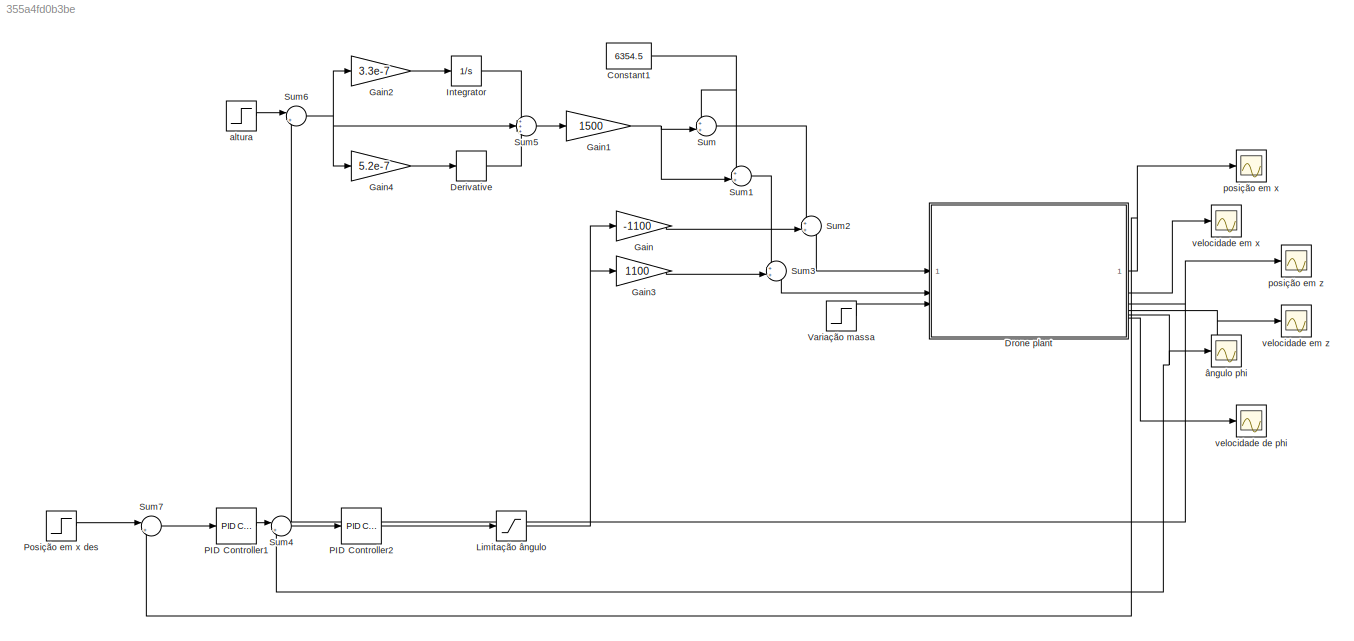
MODEL slx_355a4fd0b3be
KIND model
CONFIG AbsTol = auto
CONFIG EnableMultiTasking = off
CONFIG FixedStep = auto
CONFIG MaxStep = auto
CONFIG MinStep = auto
CONFIG RelTol = 1e-3
CONFIG SampleTimeConstraint = Unconstrained
CONFIG SolverName = VariableStepAuto
CONFIG StartTime = 0.0
CONFIG StopTime = 100
BLOCK [Scope]  ângulo phi
  Floating = off
  NumInputPorts = 1
  ScopeSpecificationString = Simulink.scopes.TimeScopeBlockCfg('CurrentConfiguration', extmgr.ConfigurationSet(extmgr.Configuration('Core','General UI',true),extmgr.Configuration('Core','Source UI',true),extmgr.Configuration('Sources','WiredSimulink',true,'DataLoggingVariableName','ScopeData2'),extmgr.Configuration('Visuals','Time Domain',true,'SerializedDisplays',{struct('MinYLimReal','-0.96448','MaxYLimReal','0.59619','YLab...<+1374ch>
BLOCK [Constant] Constant1
  Value = 6354.5
BLOCK [Derivative] Derivative
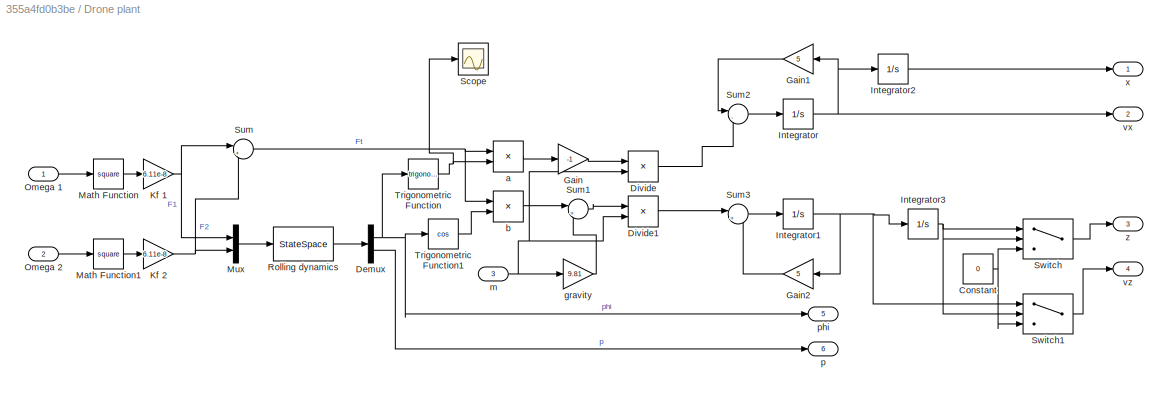
BLOCK [SubSystem] Drone plant
BLOCK [Constant] Drone plant/Constant
  Value = 0
BLOCK [Demux] Drone plant/Demux
  Outputs = 2
BLOCK [Product] Drone plant/Divide
  Inputs = */
BLOCK [Product] Drone plant/Divide1
  Inputs = */
BLOCK [Gain] Drone plant/Gain
  Gain = -1
BLOCK [Gain] Drone plant/Gain1
  Gain = 5
BLOCK [Gain] Drone plant/Gain2
  Gain = 5
BLOCK [Integrator] Drone plant/Integrator
BLOCK [Integrator] Drone plant/Integrator1
BLOCK [Integrator] Drone plant/Integrator2
BLOCK [Integrator] Drone plant/Integrator3
BLOCK [Gain] Drone plant/Kf 1
  Gain = 6.11e-8
BLOCK [Gain] Drone plant/Kf 2
  Gain = 6.11e-8
BLOCK [Math] Drone plant/Math Function
  Operator = square
BLOCK [Math] Drone plant/Math Function1
  Operator = square
BLOCK [Mux] Drone plant/Mux
  DisplayOption = bar
  Inputs = 2
BLOCK [Inport] Drone plant/Omega 1
BLOCK [Inport] Drone plant/Omega 2
  Port = 2
BLOCK [StateSpace] Drone plant/Rolling dynamics
  A = [0 1; 0 -1800]
  B = [0 0; 110.8 -110.8]
  C = [1 0; 0 1]
  D = [0 0; 0 0]
  InitialCondition = 0
BLOCK [Scope] Drone plant/Scope
  Floating = off
  NumInputPorts = 1
  ScopeSpecificationString = Simulink.scopes.TimeScopeBlockCfg('CurrentConfiguration', extmgr.ConfigurationSet(extmgr.Configuration('Core','General UI',true),extmgr.Configuration('Core','Source UI',true),extmgr.Configuration('Sources','WiredSimulink',true,'DataLoggingVariableName','ScopeData1'),extmgr.Configuration('Visuals','Time Domain',true,'SerializedDisplays',{struct('MinYLimReal','-0.12237','MaxYLimReal','0.0136','YLabe...<+1407ch>
BLOCK [Sum] Drone plant/Sum
  Inputs = |++
BLOCK [Sum] Drone plant/Sum1
  Inputs = |+-
BLOCK [Sum] Drone plant/Sum2
  Inputs = |-+
  NameLocation = top
BLOCK [Sum] Drone plant/Sum3
  Inputs = |+-
  NameLocation = top
BLOCK [Switch] Drone plant/Switch
  Criteria = u2 > Threshold
  InputSameDT = off
  SaturateOnIntegerOverflow = off
BLOCK [Switch] Drone plant/Switch1
  Criteria = u2 > Threshold
  InputSameDT = off
  SaturateOnIntegerOverflow = off
BLOCK [Trigonometry] Drone plant/Trigonometric Function
BLOCK [Trigonometry] Drone plant/Trigonometric Function1
  Operator = cos
BLOCK [Product] Drone plant/a
BLOCK [Product] Drone plant/b
BLOCK [Gain] Drone plant/gravity
  Gain = 9.81
BLOCK [Inport] Drone plant/m
  Port = 3
BLOCK [Outport] Drone plant/p
  Port = 6
BLOCK [Outport] Drone plant/phi
  Port = 5
BLOCK [Outport] Drone plant/vx
  Port = 2
BLOCK [Outport] Drone plant/vz
  Port = 4
BLOCK [Outport] Drone plant/x
BLOCK [Outport] Drone plant/z
  Port = 3
BLOCK [Gain] Gain
  Gain = -1100
BLOCK [Gain] Gain1
  Gain = 1500
BLOCK [Gain] Gain2
  Gain = 3.3e-7
BLOCK [Gain] Gain3
  Gain = 1100
BLOCK [Gain] Gain4
  Gain = 5.2e-7
BLOCK [Integrator] Integrator
BLOCK [Saturate] Limitação ângulo
  LowerLimit = -1
  UpperLimit = 1
BLOCK [Reference] PID Controller1  REF=slpidlib/PID Controller
  LibrarySourceBlock = simulink/Continuous/PID Controller
  SourceBlock = slpidlib/PID Controller
  SourceType = PID 1dof
BLOCK [Reference] PID Controller2  REF=slpidlib/PID Controller
  LibrarySourceBlock = simulink/Continuous/PID Controller
  SourceBlock = slpidlib/PID Controller
  SourceType = PID 1dof
BLOCK [Step] Posição em x des
  After = 10
  SampleTime = 0
  Time = 0
BLOCK [Sum] Sum
  Inputs = ++|
BLOCK [Sum] Sum1
  Inputs = ++|
BLOCK [Sum] Sum2
  Inputs = ++|
BLOCK [Sum] Sum3
  Inputs = ++|
BLOCK [Sum] Sum4
  Inputs = |+-
BLOCK [Sum] Sum5
  Inputs = +++
BLOCK [Sum] Sum6
  Inputs = |+-
BLOCK [Sum] Sum7
  Inputs = |+-
  NameLocation = right
BLOCK [Step] Variação massa
  After = 0.1
  Before = 0.503
  SampleTime = 0
  Time = 10
BLOCK [Step] altura
  After = 5
  SampleTime = 0
  Time = 0
BLOCK [Scope] posição em x
  Floating = off
  NumInputPorts = 1
  ScopeSpecificationString = Simulink.scopes.TimeScopeBlockCfg('CurrentConfiguration', extmgr.ConfigurationSet(extmgr.Configuration('Core','General UI',true),extmgr.Configuration('Core','Source UI',true),extmgr.Configuration('Sources','WiredSimulink',true,'DataLoggingVariableName','ScopeData6'),extmgr.Configuration('Visuals','Time Domain',true,'SerializedDisplays',{struct('MinYLimReal','-2.03387','MaxYLimReal','18.25704','YLa...<+1376ch>
BLOCK [Scope] posição em z
  Floating = off
  NumInputPorts = 1
  ScopeSpecificationString = Simulink.scopes.TimeScopeBlockCfg('CurrentConfiguration', extmgr.ConfigurationSet(extmgr.Configuration('Core','General UI',true),extmgr.Configuration('Core','Source UI',true),extmgr.Configuration('Sources','WiredSimulink',true,'DataLoggingVariableName','ScopeData4'),extmgr.Configuration('Visuals','Time Domain',true,'SerializedDisplays',{struct('MinYLimReal','-0.94187','MaxYLimReal','8.47682','YLab...<+1372ch>
BLOCK [Scope] velocidade de phi
  Floating = off
  NumInputPorts = 1
  ScopeSpecificationString = Simulink.scopes.TimeScopeBlockCfg('CurrentConfiguration', extmgr.ConfigurationSet(extmgr.Configuration('Core','General UI',true),extmgr.Configuration('Core','Source UI',true),extmgr.Configuration('Sources','WiredSimulink',true,'DataLoggingVariableName','ScopeData3'),extmgr.Configuration('Visuals','Time Domain',true),extmgr.Configuration('Tools','Plot Navigation',true),extmgr.Configuration('Tools',...<+40ch>
BLOCK [Scope] velocidade em x
  Floating = off
  NumInputPorts = 1
  ScopeSpecificationString = Simulink.scopes.TimeScopeBlockCfg('CurrentConfiguration', extmgr.ConfigurationSet(extmgr.Configuration('Core','General UI',true),extmgr.Configuration('Core','Source UI',true),extmgr.Configuration('Sources','WiredSimulink',true,'DataLoggingVariableName','ScopeData5'),extmgr.Configuration('Visuals','Time Domain',true,'SerializedDisplays',{struct('MinYLimReal','-1.41265','MaxYLimReal','3.70699','YLab...<+1372ch>
BLOCK [Scope] velocidade em z
  Floating = off
  NumInputPorts = 1
  ScopeSpecificationString = Simulink.scopes.TimeScopeBlockCfg('CurrentConfiguration', extmgr.ConfigurationSet(extmgr.Configuration('Core','General UI',true),extmgr.Configuration('Core','Source UI',true),extmgr.Configuration('Sources','WiredSimulink',true,'DataLoggingVariableName','ScopeData1'),extmgr.Configuration('Visuals','Time Domain',true,'SerializedDisplays',{struct('MinYLimReal','-0.86763','MaxYLimReal','5.70956','YLab...<+1372ch>
NET Constant1:1 -> Sum1:1, Sum:1
LINE Derivative:1 -> Sum5:3
NET Drone plant/Constant:1 -> Drone plant/Switch1:3, Drone plant/Switch:3
NET Drone plant/Demux:1 -> Drone plant/Trigonometric Function1:1, Drone plant/Trigonometric Function:1, Drone plant/phi:1
LINE Drone plant/Demux:2 -> Drone plant/p:1
LINE Drone plant/Divide1:1 -> Drone plant/Sum3:1
LINE Drone plant/Divide:1 -> Drone plant/Sum2:2
LINE Drone plant/Gain1:1 -> Drone plant/Sum2:1
LINE Drone plant/Gain2:1 -> Drone plant/Sum3:2
LINE Drone plant/Gain:1 -> Drone plant/Divide:1
NET Drone plant/Integrator1:1 -> Drone plant/Gain2:1, Drone plant/Integrator3:1, Drone plant/Switch1:1
LINE Drone plant/Integrator2:1 -> Drone plant/x:1
NET Drone plant/Integrator3:1 -> Drone plant/Switch1:2, Drone plant/Switch:1, Drone plant/Switch:2
NET Drone plant/Integrator:1 -> Drone plant/Gain1:1, Drone plant/Integrator2:1, Drone plant/vx:1
NET Drone plant/Kf 1:1 -> Drone plant/Mux:1, Drone plant/Sum:1
NET Drone plant/Kf 2:1 -> Drone plant/Mux:2, Drone plant/Sum:2
LINE Drone plant/Math Function1:1 -> Drone plant/Kf 2:1
LINE Drone plant/Math Function:1 -> Drone plant/Kf 1:1
LINE Drone plant/Mux:1 -> Drone plant/Rolling dynamics:1
LINE Drone plant/Omega 1:1 -> Drone plant/Math Function:1
LINE Drone plant/Omega 2:1 -> Drone plant/Math Function1:1
LINE Drone plant/Rolling dynamics:1 -> Drone plant/Demux:1
LINE Drone plant/Sum1:1 -> Drone plant/Divide1:1
LINE Drone plant/Sum2:1 -> Drone plant/Integrator:1
LINE Drone plant/Sum3:1 -> Drone plant/Integrator1:1
NET Drone plant/Sum:1 -> Drone plant/a:1, Drone plant/b:1
LINE Drone plant/Switch1:1 -> Drone plant/vz:1
LINE Drone plant/Switch:1 -> Drone plant/z:1
LINE Drone plant/Trigonometric Function1:1 -> Drone plant/b:2
NET Drone plant/Trigonometric Function:1 -> Drone plant/Scope:1, Drone plant/a:2
LINE Drone plant/a:1 -> Drone plant/Gain:1
LINE Drone plant/b:1 -> Drone plant/Sum1:1
LINE Drone plant/gravity:1 -> Drone plant/Sum1:2
NET Drone plant/m:1 -> Drone plant/Divide1:2, Drone plant/Divide:2, Drone plant/gravity:1
NET Drone plant:1 -> Sum7:2, posição em x:1
LINE Drone plant:2 -> velocidade em x:1
NET Drone plant:3 -> Sum6:2, posição em z:1
LINE Drone plant:4 -> velocidade em z:1
NET Drone plant:5 ->  ângulo phi:1, Sum4:2
LINE Drone plant:6 -> velocidade de phi:1
NET Gain1:1 -> Sum1:2, Sum:2
LINE Gain2:1 -> Integrator:1
LINE Gain3:1 -> Sum3:2
LINE Gain4:1 -> Derivative:1
LINE Gain:1 -> Sum2:2
LINE Integrator:1 -> Sum5:1
NET Limitação ângulo:1 -> Gain3:1, Gain:1
LINE PID Controller1:1 -> Sum4:1
LINE PID Controller2:1 -> Limitação ângulo:1
LINE Posição em x des:1 -> Sum7:1
LINE Sum1:1 -> Sum3:1
LINE Sum2:1 -> Drone plant:1
LINE Sum3:1 -> Drone plant:2
LINE Sum4:1 -> PID Controller2:1
LINE Sum5:1 -> Gain1:1
NET Sum6:1 -> Gain2:1, Gain4:1, Sum5:2
LINE Sum7:1 -> PID Controller1:1
LINE Sum:1 -> Sum2:1
LINE Variação massa:1 -> Drone plant:3
LINE altura:1 -> Sum6:1
note: NET lines group one-source signal fan-out (src -> all destinations, sorted); 1:1 wires keep LINE
